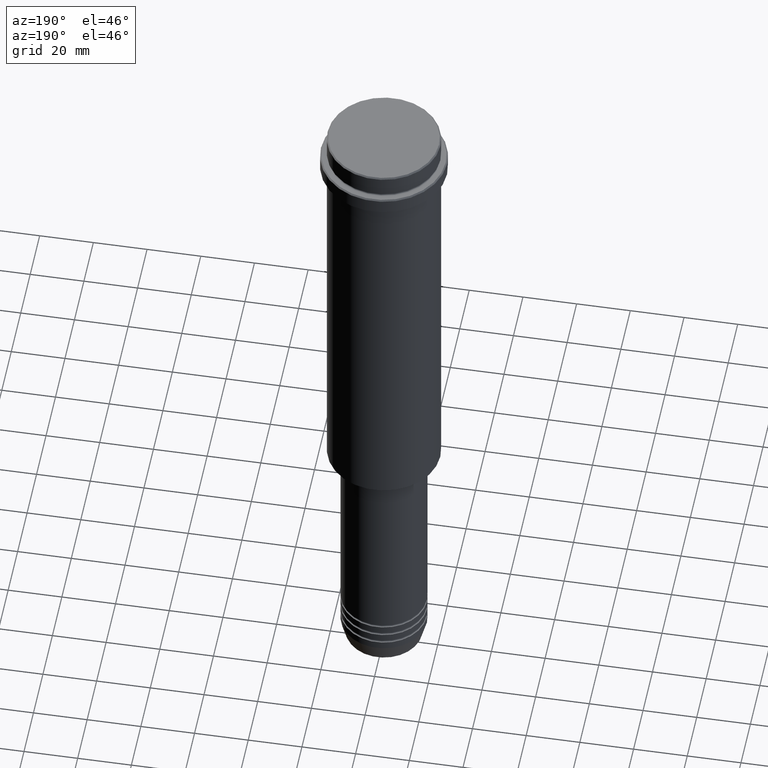
[diagram: clean part render]
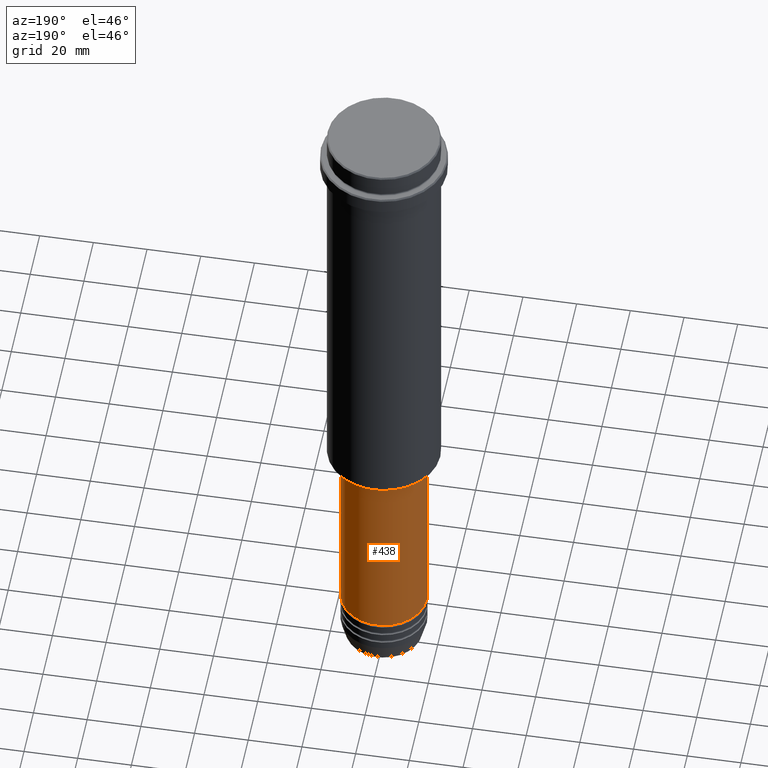
[diagram: same view with one face highlighted and labeled with its STEP entity id]
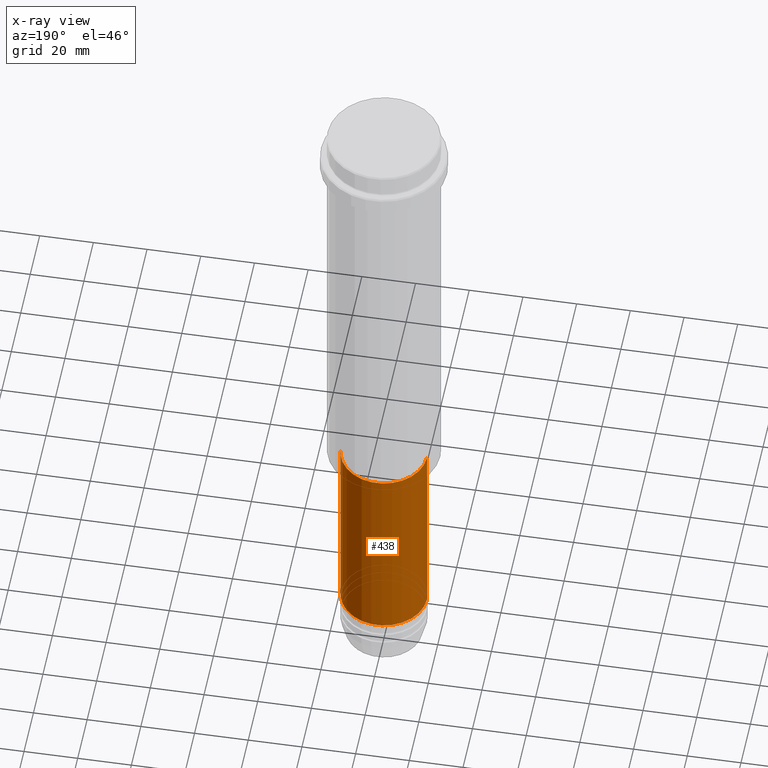
[diagram: x-ray of the same camera — body ghosted, the highlighted face saturated]
A machine part, auxiliary view. The second image highlights one B-rep face of the part: STEP entity #438.
The next image is the same camera in x-ray: the body ghosted, the highlighted face saturated — about 0% of this face is hidden behind the body in this view.
In plain terms, the highlighted cylindrical surface (partial cylindrical patch) has radius 16 mm, axis along (-0, -0, 1).
Its self-contained STEP definition (entity closure, byte-faithful):
#9 = CIRCLE ( 'NONE', #1356, 16.00000000000000355 ) ;
#35 = CARTESIAN_POINT ( 'NONE',  ( -16.00000000000000000, 1.959434878635765131E-15, 0.000000000000000000 ) ) ;
#138 = LINE ( 'NONE', #593, #645 ) ;
#153 = CARTESIAN_POINT ( 'NONE',  ( -16.00000000000000355, 1.959434878635765526E-15, -166.0000000000000000 ) ) ;
#164 = CARTESIAN_POINT ( 'NONE',  ( 0.000000000000000000, 0.000000000000000000, -240.9999999999999147 ) ) ;
#206 = CARTESIAN_POINT ( 'NONE',  ( 16.00000000000000355, 0.000000000000000000, -166.0000000000000000 ) ) ;
#217 = DIRECTION ( 'NONE',  ( -0.000000000000000000, -0.000000000000000000, 1.000000000000000000 ) ) ;
#316 = EDGE_CURVE ( 'NONE', #506, #906, #846, .T. ) ;
#331 = EDGE_CURVE ( 'NONE', #906, #1008, #586, .T. ) ;
#353 = VERTEX_POINT ( 'NONE', #206 ) ;
#395 = EDGE_CURVE ( 'NONE', #353, #1008, #9, .T. ) ;
#397 = EDGE_LOOP ( 'NONE', ( #451, #418, #1390, #1312 ) ) ;
#418 = ORIENTED_EDGE ( 'NONE', *, *, #331, .T. ) ;
#438 = ADVANCED_FACE ( 'NONE', ( #539 ), #525, .T. ) ;
#451 = ORIENTED_EDGE ( 'NONE', *, *, #316, .T. ) ;
#483 = DIRECTION ( 'NONE',  ( -0.000000000000000000, -0.000000000000000000, 1.000000000000000000 ) ) ;
#506 = VERTEX_POINT ( 'NONE', #668 ) ;
#525 = CYLINDRICAL_SURFACE ( 'NONE', #823, 16.00000000000000000 ) ;
#539 = FACE_OUTER_BOUND ( 'NONE', #397, .T. ) ;
#586 = LINE ( 'NONE', #35, #1404 ) ;
#591 = AXIS2_PLACEMENT_3D ( 'NONE', #164, #606, #1006 ) ;
#593 = CARTESIAN_POINT ( 'NONE',  ( 16.00000000000000000, 0.000000000000000000, 0.000000000000000000 ) ) ;
#606 = DIRECTION ( 'NONE',  ( -0.000000000000000000, -0.000000000000000000, 1.000000000000000000 ) ) ;
#645 = VECTOR ( 'NONE', #1344, 1000.000000000000000 ) ;
#668 = CARTESIAN_POINT ( 'NONE',  ( 16.00000000000000000, 0.000000000000000000, -240.9999999999999147 ) ) ;
#728 = CARTESIAN_POINT ( 'NONE',  ( -16.00000000000000000, 1.959434878635765131E-15, -240.9999999999999147 ) ) ;
#775 = EDGE_CURVE ( 'NONE', #506, #353, #138, .T. ) ;
#823 = AXIS2_PLACEMENT_3D ( 'NONE', #1175, #217, #969 ) ;
#846 = CIRCLE ( 'NONE', #591, 16.00000000000000000 ) ;
#906 = VERTEX_POINT ( 'NONE', #728 ) ;
#950 = CARTESIAN_POINT ( 'NONE',  ( 0.000000000000000000, 0.000000000000000000, -166.0000000000000000 ) ) ;
#969 = DIRECTION ( 'NONE',  ( 1.000000000000000000, 0.000000000000000000, 0.000000000000000000 ) ) ;
#1006 = DIRECTION ( 'NONE',  ( 1.000000000000000000, 0.000000000000000000, 0.000000000000000000 ) ) ;
#1008 = VERTEX_POINT ( 'NONE', #153 ) ;
#1050 = DIRECTION ( 'NONE',  ( -0.000000000000000000, -0.000000000000000000, 1.000000000000000000 ) ) ;
#1175 = CARTESIAN_POINT ( 'NONE',  ( 0.000000000000000000, 0.000000000000000000, 0.000000000000000000 ) ) ;
#1252 = DIRECTION ( 'NONE',  ( 1.000000000000000000, 0.000000000000000000, 0.000000000000000000 ) ) ;
#1312 = ORIENTED_EDGE ( 'NONE', *, *, #775, .F. ) ;
#1344 = DIRECTION ( 'NONE',  ( -0.000000000000000000, -0.000000000000000000, 1.000000000000000000 ) ) ;
#1356 = AXIS2_PLACEMENT_3D ( 'NONE', #950, #1050, #1252 ) ;
#1390 = ORIENTED_EDGE ( 'NONE', *, *, #395, .F. ) ;
#1404 = VECTOR ( 'NONE', #483, 1000.000000000000000 ) ;